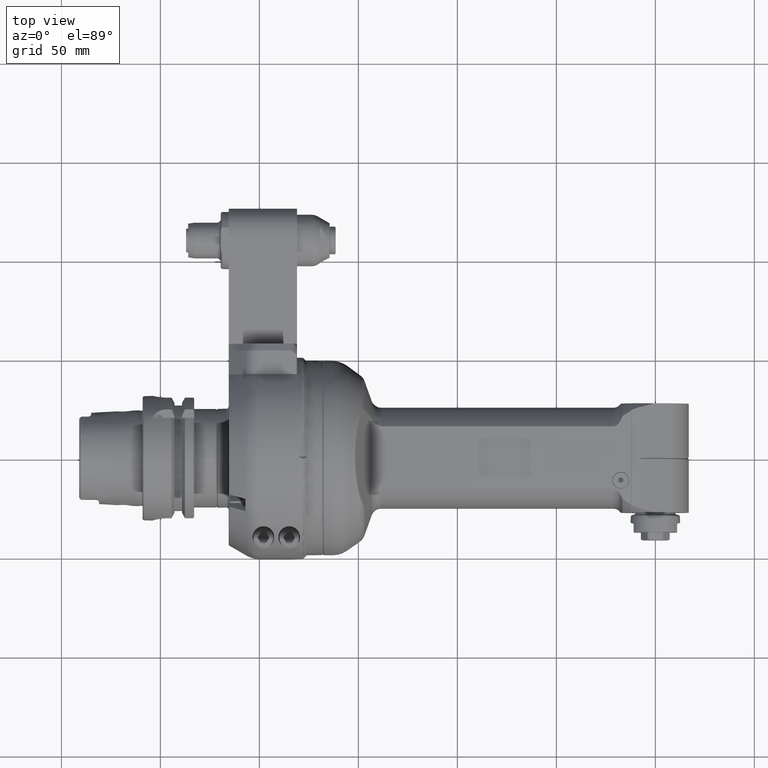
[diagram: clean part render]
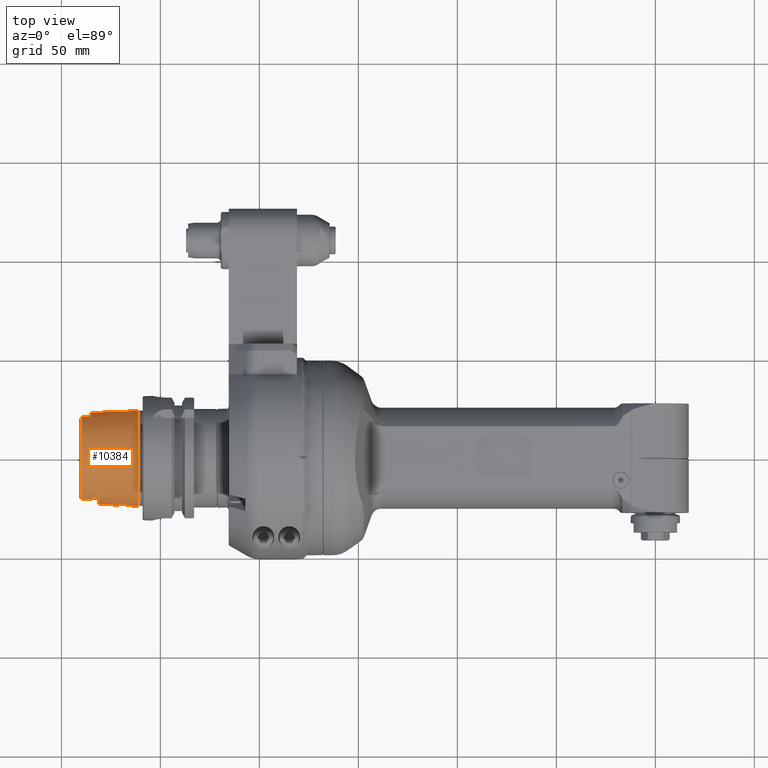
[diagram: same view with one face highlighted and labeled with its STEP entity id]
A machine part, top view. The second image highlights one B-rep face of the part: STEP entity #10384.
In plain terms, the highlighted conical surface has half-angle 2.868 deg.
Its self-contained STEP definition (entity closure, byte-faithful):
#142=B_SPLINE_CURVE_WITH_KNOTS('',3,(#16040,#16041,#16042,#16043,#16044,
#16045,#16046,#16047,#16048,#16049,#16050,#16051,#16052,#16053,#16054,#16055,
#16056,#16057,#16058,#16059,#16060,#16061,#16062,#16063,#16064,#16065,#16066,
#16067,#16068,#16069,#16070,#16071,#16072,#16073),.UNSPECIFIED.,.T.,.F.,
(4,2,2,2,2,2,2,2,2,2,2,2,2,2,2,2,4),(-2.26557963365273,-2.12289890541703,
-1.98021817718132,-1.83774161437097,-1.69526505156063,-1.55278848875028,
-1.41031192593993,-1.26763119770423,-1.12495046946852,-0.984429307223055,
-0.843908144977592,-0.703191689855926,-0.562475234734259,-0.421758779612592,
-0.281042324490925,-0.140521162245463,0.),.UNSPECIFIED.);
#143=B_SPLINE_CURVE_WITH_KNOTS('',3,(#16084,#16085,#16086,#16087,#16088,
#16089,#16090,#16091),.UNSPECIFIED.,.F.,.F.,(4,2,2,4),(1.87852147331266,
1.963329695841,2.14651650480581,2.20196367131646),.UNSPECIFIED.);
#144=B_SPLINE_CURVE_WITH_KNOTS('',3,(#16093,#16094,#16095,#16096,#16097,
#16098,#16099,#16100,#16101,#16102,#16103,#16104,#16105,#16106),
 .UNSPECIFIED.,.F.,.F.,(4,2,2,2,2,2,4),(0.648088302025581,0.675048238727927,
0.706405860283038,0.747031442264556,0.813706573861447,0.931756672654788,
0.968140813857767),.UNSPECIFIED.);
#145=B_SPLINE_CURVE_WITH_KNOTS('',3,(#16110,#16111,#16112,#16113,#16114,
#16115,#16116,#16117,#16118,#16119,#16120,#16121,#16122,#16123),
 .UNSPECIFIED.,.F.,.F.,(4,2,2,2,2,2,4),(0.250897982804697,0.322899286414574,
0.451677279434134,0.504038531730168,0.537850831870268,0.567600566645651,
0.582022119285949),.UNSPECIFIED.);
#146=B_SPLINE_CURVE_WITH_KNOTS('',3,(#16125,#16126,#16127,#16128,#16129,
#16130,#16131,#16132),.UNSPECIFIED.,.F.,.F.,(4,2,2,4),(1.0436736915198,
1.09912085673295,1.28230766618844,1.36711588957229),.UNSPECIFIED.);
#147=B_SPLINE_CURVE_WITH_KNOTS('',3,(#16136,#16137,#16138,#16139,#16140,
#16141,#16142,#16143,#16144,#16145,#16146,#16147,#16148,#16149,#16150,#16151,
#16152,#16153,#16154,#16155,#16156,#16157,#16158,#16159,#16160,#16161,#16162,
#16163,#16164,#16165,#16166,#16167,#16168,#16169,#16170,#16171,#16172,#16173,
#16174,#16175,#16176,#16177,#16178,#16179,#16180,#16181,#16182,#16183,#16184,
#16185,#16186,#16187,#16188,#16189,#16190,#16191,#16192,#16193,#16194,#16195,
#16196,#16197,#16198,#16199,#16200,#16201,#16202,#16203,#16204,#16205,#16206,
#16207,#16208,#16209,#16210,#16211,#16212,#16213,#16214,#16215,#16216,#16217,
#16218,#16219,#16220,#16221,#16222,#16223,#16224,#16225,#16226,#16227,#16228,
#16229),.UNSPECIFIED.,.F.,.F.,(4,3,3,3,3,3,3,3,3,3,3,3,3,3,3,3,3,3,3,3,
3,3,3,3,3,3,3,3,3,3,3,4),(0.,0.03225806451613,0.06451612903226,0.09677419354839,
0.1290322580645,0.1612903225806,0.1935483870968,0.2258064516129,0.258064516129,
0.2903225806452,0.3225806451613,0.3548387096774,0.3870967741935,0.4193548387097,
0.4516129032258,0.4838709677419,0.5161290322581,0.5483870967742,0.5806451612903,
0.6129032258065,0.6451612903226,0.6774193548387,0.7096774193548,0.741935483871,
0.7741935483871,0.8064516129032,0.8387096774194,0.8709677419355,0.9032258064516,
0.9354838709677,0.9677419354839,1.),.UNSPECIFIED.);
#148=B_SPLINE_CURVE_WITH_KNOTS('',3,(#16231,#16232,#16233,#16234,#16235,
#16236,#16237,#16238,#16239,#16240,#16241,#16242,#16243,#16244,#16245),
 .UNSPECIFIED.,.F.,.F.,(4,1,1,1,1,1,1,1,1,1,1,1,4),(0.,0.08333333333333,
0.1666666666667,0.25,0.3333333333333,0.4166666666667,0.5,0.5833333333333,
0.6666666666667,0.75,0.8333333333333,0.9166666666667,1.),.UNSPECIFIED.);
#149=B_SPLINE_CURVE_WITH_KNOTS('',3,(#16247,#16248,#16249,#16250,#16251,
#16252,#16253,#16254,#16255,#16256,#16257,#16258,#16259,#16260,#16261,#16262,
#16263,#16264,#16265,#16266,#16267,#16268,#16269,#16270,#16271,#16272,#16273,
#16274,#16275,#16276,#16277,#16278,#16279,#16280,#16281,#16282,#16283,#16284,
#16285,#16286,#16287,#16288,#16289,#16290,#16291,#16292,#16293,#16294,#16295,
#16296,#16297,#16298,#16299,#16300,#16301,#16302,#16303,#16304,#16305,#16306,
#16307,#16308,#16309,#16310,#16311,#16312,#16313,#16314,#16315,#16316,#16317,
#16318,#16319,#16320,#16321,#16322),.UNSPECIFIED.,.F.,.F.,(4,3,3,3,3,3,
3,3,3,3,3,3,3,3,3,3,3,3,3,3,3,3,3,3,3,4),(0.,0.04,0.08,0.12,0.16,0.2,0.24,
0.28,0.32,0.36,0.4,0.44,0.48,0.52,0.56,0.6,0.64,0.68,0.72,0.76,0.8,0.84,
0.88,0.92,0.96,1.),.UNSPECIFIED.);
#150=B_SPLINE_CURVE_WITH_KNOTS('',3,(#16324,#16325,#16326,#16327,#16328,
#16329,#16330,#16331,#16332,#16333,#16334,#16335),.UNSPECIFIED.,.F.,.F.,
(4,2,2,2,2,4),(-1.35810253269912,-1.33001864992515,-1.27929112224147,-1.22120743995857,
-1.19655389712235,-1.18646391717197),.UNSPECIFIED.);
#151=B_SPLINE_CURVE_WITH_KNOTS('',3,(#16339,#16340,#16341,#16342,#16343,
#16344,#16345,#16346,#16347,#16348),.UNSPECIFIED.,.F.,.F.,(4,2,2,2,4),(-0.500911046834186,
-0.481998817137455,-0.442781745819813,-0.333902719665274,-0.278648797669557),
 .UNSPECIFIED.);
#152=B_SPLINE_CURVE_WITH_KNOTS('',3,(#16350,#16351,#16352,#16353,#16354,
#16355,#16356,#16357,#16358,#16359,#16360,#16361,#16362,#16363,#16364,#16365,
#16366,#16367,#16368,#16369,#16370,#16371,#16372,#16373,#16374,#16375,#16376,
#16377,#16378,#16379,#16380,#16381,#16382,#16383,#16384,#16385,#16386,#16387,
#16388,#16389,#16390,#16391,#16392,#16393,#16394,#16395,#16396,#16397,#16398,
#16399,#16400,#16401,#16402,#16403,#16404,#16405,#16406,#16407,#16408,#16409,
#16410,#16411,#16412,#16413,#16414,#16415,#16416,#16417,#16418,#16419,#16420,
#16421,#16422,#16423,#16424,#16425),.UNSPECIFIED.,.F.,.F.,(4,3,3,3,3,3,
3,3,3,3,3,3,3,3,3,3,3,3,3,3,3,3,3,3,3,4),(0.,0.04,0.08,0.12,0.16,0.2,0.24,
0.28,0.32,0.36,0.4,0.44,0.48,0.52,0.56,0.6,0.64,0.68,0.72,0.76,0.8,0.84,
0.88,0.92,0.96,1.),.UNSPECIFIED.);
#153=B_SPLINE_CURVE_WITH_KNOTS('',3,(#16427,#16428,#16429,#16430,#16431,
#16432,#16433,#16434,#16435,#16436,#16437,#16438,#16439,#16440,#16441),
 .UNSPECIFIED.,.F.,.F.,(4,1,1,1,1,1,1,1,1,1,1,1,4),(0.,0.08333333333333,
0.1666666666667,0.25,0.3333333333333,0.4166666666667,0.5,0.5833333333333,
0.6666666666667,0.75,0.8333333333333,0.9166666666667,1.),.UNSPECIFIED.);
#154=B_SPLINE_CURVE_WITH_KNOTS('',3,(#16443,#16444,#16445,#16446,#16447,
#16448,#16449,#16450,#16451,#16452,#16453,#16454,#16455,#16456,#16457,#16458,
#16459,#16460,#16461,#16462,#16463,#16464,#16465,#16466,#16467,#16468,#16469,
#16470,#16471,#16472,#16473,#16474,#16475,#16476,#16477,#16478,#16479,#16480,
#16481,#16482,#16483,#16484,#16485,#16486,#16487,#16488,#16489,#16490,#16491,
#16492,#16493,#16494,#16495,#16496,#16497,#16498,#16499,#16500,#16501,#16502,
#16503,#16504,#16505,#16506,#16507,#16508,#16509,#16510,#16511,#16512,#16513,
#16514,#16515,#16516,#16517,#16518,#16519,#16520,#16521,#16522,#16523,#16524,
#16525,#16526,#16527,#16528,#16529,#16530,#16531,#16532,#16533,#16534,#16535,
#16536),.UNSPECIFIED.,.F.,.F.,(4,3,3,3,3,3,3,3,3,3,3,3,3,3,3,3,3,3,3,3,
3,3,3,3,3,3,3,3,3,3,3,4),(0.,0.03225806451613,0.06451612903226,0.09677419354839,
0.1290322580645,0.1612903225806,0.1935483870968,0.2258064516129,0.258064516129,
0.2903225806452,0.3225806451613,0.3548387096774,0.3870967741935,0.4193548387097,
0.4516129032258,0.4838709677419,0.5161290322581,0.5483870967742,0.5806451612903,
0.6129032258065,0.6451612903226,0.6774193548387,0.7096774193548,0.741935483871,
0.7741935483871,0.8064516129032,0.8387096774194,0.8709677419355,0.9032258064516,
0.9354838709677,0.9677419354839,1.),.UNSPECIFIED.);
#155=B_SPLINE_CURVE_WITH_KNOTS('',3,(#16541,#16542,#16543,#16544,#16545,
#16546,#16547,#16548,#16549,#16550,#16551,#16552,#16553,#16554,#16555,#16556,
#16557,#16558),.UNSPECIFIED.,.F.,.F.,(4,2,2,2,2,2,2,2,4),(0.562475234734259,
0.703191689855926,0.843908144977593,0.984429307223056,1.12495046946852,
1.26763119770423,1.41031192593993,1.55278848875028,1.69526505156063),
 .UNSPECIFIED.);
#156=B_SPLINE_CURVE_WITH_KNOTS('',3,(#16559,#16560,#16561,#16562,#16563,
#16564,#16565,#16566,#16567,#16568,#16569,#16570,#16571,#16572,#16573,#16574,
#16575,#16576,#16577),.UNSPECIFIED.,.F.,.F.,(4,2,2,2,3,2,2,2,4),(1.69526505156063,
1.83774161437097,1.98021817718132,2.12289890541703,2.26557963365273,2.4061007958982,
2.54662195814366,2.68733841326533,2.82805486838699),.UNSPECIFIED.);
#319=CONICAL_SURFACE('',#11097,23.49739340079,0.0500570901447486);
#481=LINE('',#16080,#1177);
#1177=VECTOR('',#12543,23.49739340079);
#2069=FACE_BOUND('',#2839,.T.);
#2070=FACE_BOUND('',#2840,.T.);
#2188=FACE_OUTER_BOUND('',#2838,.T.);
#2838=EDGE_LOOP('',(#7019,#7020,#7021,#7022,#7023,#7024,#7025,#7026,#7027,
#7028,#7029,#7030,#7031,#7032,#7033,#7034,#7035,#7036,#7037,#7038,#7039));
#2839=EDGE_LOOP('',(#7040,#7041));
#2840=EDGE_LOOP('',(#7042));
#3562=CIRCLE('',#11098,24.22021898401);
#3563=CIRCLE('',#11099,22.77456781756);
#3564=CIRCLE('',#11100,23.01805084955);
#3565=CIRCLE('',#11101,22.77456781756);
#3566=CIRCLE('',#11102,23.21844661614);
#3567=CIRCLE('',#11103,22.77456781756);
#3568=CIRCLE('',#11104,24.22021898401);
#4217=VERTEX_POINT('',#16039);
#4218=VERTEX_POINT('',#16076);
#4219=VERTEX_POINT('',#16077);
#4220=VERTEX_POINT('',#16079);
#4221=VERTEX_POINT('',#16081);
#4222=VERTEX_POINT('',#16083);
#4223=VERTEX_POINT('',#16092);
#4224=VERTEX_POINT('',#16107);
#4225=VERTEX_POINT('',#16109);
#4226=VERTEX_POINT('',#16124);
#4227=VERTEX_POINT('',#16133);
#4228=VERTEX_POINT('',#16135);
#4229=VERTEX_POINT('',#16230);
#4230=VERTEX_POINT('',#16246);
#4231=VERTEX_POINT('',#16323);
#4232=VERTEX_POINT('',#16336);
#4233=VERTEX_POINT('',#16338);
#4234=VERTEX_POINT('',#16349);
#4235=VERTEX_POINT('',#16426);
#4236=VERTEX_POINT('',#16442);
#4237=VERTEX_POINT('',#16539);
#4238=VERTEX_POINT('',#16540);
#5301=EDGE_CURVE('',#4217,#4217,#142,.T.);
#5303=EDGE_CURVE('',#4218,#4219,#3562,.T.);
#5304=EDGE_CURVE('',#4219,#4220,#481,.T.);
#5305=EDGE_CURVE('',#4220,#4221,#3563,.T.);
#5306=EDGE_CURVE('',#4222,#4221,#143,.T.);
#5307=EDGE_CURVE('',#4222,#4223,#144,.T.);
#5308=EDGE_CURVE('',#4224,#4223,#3564,.T.);
#5309=EDGE_CURVE('',#4224,#4225,#145,.T.);
#5310=EDGE_CURVE('',#4226,#4225,#146,.T.);
#5311=EDGE_CURVE('',#4227,#4226,#3565,.T.);
#5312=EDGE_CURVE('',#4228,#4227,#147,.T.);
#5313=EDGE_CURVE('',#4229,#4228,#148,.T.);
#5314=EDGE_CURVE('',#4230,#4229,#149,.T.);
#5315=EDGE_CURVE('',#4231,#4230,#150,.T.);
#5316=EDGE_CURVE('',#4232,#4231,#3566,.T.);
#5317=EDGE_CURVE('',#4233,#4232,#151,.T.);
#5318=EDGE_CURVE('',#4234,#4233,#152,.T.);
#5319=EDGE_CURVE('',#4235,#4234,#153,.T.);
#5320=EDGE_CURVE('',#4236,#4235,#154,.T.);
#5321=EDGE_CURVE('',#4236,#4220,#3567,.T.);
#5322=EDGE_CURVE('',#4219,#4218,#3568,.T.);
#5323=EDGE_CURVE('',#4237,#4238,#155,.T.);
#5324=EDGE_CURVE('',#4238,#4237,#156,.T.);
#7019=ORIENTED_EDGE('',*,*,#5303,.T.);
#7020=ORIENTED_EDGE('',*,*,#5304,.T.);
#7021=ORIENTED_EDGE('',*,*,#5305,.T.);
#7022=ORIENTED_EDGE('',*,*,#5306,.F.);
#7023=ORIENTED_EDGE('',*,*,#5307,.T.);
#7024=ORIENTED_EDGE('',*,*,#5308,.F.);
#7025=ORIENTED_EDGE('',*,*,#5309,.T.);
#7026=ORIENTED_EDGE('',*,*,#5310,.F.);
#7027=ORIENTED_EDGE('',*,*,#5311,.F.);
#7028=ORIENTED_EDGE('',*,*,#5312,.F.);
#7029=ORIENTED_EDGE('',*,*,#5313,.F.);
#7030=ORIENTED_EDGE('',*,*,#5314,.F.);
#7031=ORIENTED_EDGE('',*,*,#5315,.F.);
#7032=ORIENTED_EDGE('',*,*,#5316,.F.);
#7033=ORIENTED_EDGE('',*,*,#5317,.F.);
#7034=ORIENTED_EDGE('',*,*,#5318,.F.);
#7035=ORIENTED_EDGE('',*,*,#5319,.F.);
#7036=ORIENTED_EDGE('',*,*,#5320,.F.);
#7037=ORIENTED_EDGE('',*,*,#5321,.T.);
#7038=ORIENTED_EDGE('',*,*,#5304,.F.);
#7039=ORIENTED_EDGE('',*,*,#5322,.T.);
#7040=ORIENTED_EDGE('',*,*,#5323,.F.);
#7041=ORIENTED_EDGE('',*,*,#5324,.F.);
#7042=ORIENTED_EDGE('',*,*,#5301,.F.);
#10384=ADVANCED_FACE('',(#2188,#2069,#2070),#319,.T.);
#11097=AXIS2_PLACEMENT_3D('',#16075,#12539,#12540);
#11098=AXIS2_PLACEMENT_3D('',#16078,#12541,#12542);
#11099=AXIS2_PLACEMENT_3D('',#16082,#12544,#12545);
#11100=AXIS2_PLACEMENT_3D('',#16108,#12546,#12547);
#11101=AXIS2_PLACEMENT_3D('',#16134,#12548,#12549);
#11102=AXIS2_PLACEMENT_3D('',#16337,#12550,#12551);
#11103=AXIS2_PLACEMENT_3D('',#16537,#12552,#12553);
#11104=AXIS2_PLACEMENT_3D('',#16538,#12554,#12555);
#12539=DIRECTION('center_axis',(1.,0.,0.));
#12540=DIRECTION('ref_axis',(0.,0.707106781186548,0.707106781186548));
#12541=DIRECTION('center_axis',(-1.,0.,0.));
#12542=DIRECTION('ref_axis',(0.,0.707106781186547,0.707106781186547));
#12543=DIRECTION('',(-0.998747405449354,0.0353809278297194,0.0353809278297194));
#12544=DIRECTION('center_axis',(1.,0.,0.));
#12545=DIRECTION('ref_axis',(0.,-0.707106781186547,-0.707106781186547));
#12546=DIRECTION('center_axis',(-1.,0.,0.));
#12547=DIRECTION('ref_axis',(0.,0.950655672568357,0.310247952795186));
#12548=DIRECTION('center_axis',(-1.,0.,0.));
#12549=DIRECTION('ref_axis',(0.,-0.916365066617768,0.400343683205586));
#12550=DIRECTION('center_axis',(-1.,0.,0.));
#12551=DIRECTION('ref_axis',(0.,-0.94780590928591,-0.318847860778003));
#12552=DIRECTION('center_axis',(1.,0.,0.));
#12553=DIRECTION('ref_axis',(0.,-0.707106781186547,-0.707106781186547));
#12554=DIRECTION('center_axis',(-1.,0.,0.));
#12555=DIRECTION('ref_axis',(0.,0.707106781186547,0.707106781186547));
#16039=CARTESIAN_POINT('',(-264.25,24.05760388874,0.));
#16040=CARTESIAN_POINT('Ctrl Pts',(-268.029515050341,23.5718461085892,3.74988384644156));
#16041=CARTESIAN_POINT('Ctrl Pts',(-267.554508359898,23.5953479137215,3.75362258794793));
#16042=CARTESIAN_POINT('Ctrl Pts',(-267.048611320345,23.636207974791,3.66191293850586));
#16043=CARTESIAN_POINT('Ctrl Pts',(-266.118536625042,23.738916568537,3.28250562870908));
#16044=CARTESIAN_POINT('Ctrl Pts',(-265.694240586168,23.7999226154427,2.99487058324756));
#16045=CARTESIAN_POINT('Ctrl Pts',(-265.023850058135,23.9079449341569,2.32973588252696));
#16046=CARTESIAN_POINT('Ctrl Pts',(-264.732684231097,23.9620973119612,1.90776874445896));
#16047=CARTESIAN_POINT('Ctrl Pts',(-264.345723903129,24.0373189681924,0.980408196735909));
#16048=CARTESIAN_POINT('Ctrl Pts',(-264.25,24.0576038887331,0.474921876034486));
#16049=CARTESIAN_POINT('Ctrl Pts',(-264.25,24.0576038887331,-0.474921876034487));
#16050=CARTESIAN_POINT('Ctrl Pts',(-264.345723903129,24.0373189681924,-0.980408196735908));
#16051=CARTESIAN_POINT('Ctrl Pts',(-264.732684231097,23.9620973119612,-1.90776874445897));
#16052=CARTESIAN_POINT('Ctrl Pts',(-265.023850058135,23.9079449341569,-2.32973588252696));
#16053=CARTESIAN_POINT('Ctrl Pts',(-265.694240586168,23.7999226154427,-2.99487058324756));
#16054=CARTESIAN_POINT('Ctrl Pts',(-266.118536625042,23.738916568537,-3.28250562870908));
#16055=CARTESIAN_POINT('Ctrl Pts',(-267.048611320345,23.6362079747911,-3.66191293850586));
#16056=CARTESIAN_POINT('Ctrl Pts',(-267.554508359898,23.5953479137215,-3.75362258794793));
#16057=CARTESIAN_POINT('Ctrl Pts',(-268.497332204352,23.5487000186239,-3.74620169322924));
#16058=CARTESIAN_POINT('Ctrl Pts',(-268.996135681023,23.5393999048604,-3.64932097112701));
#16059=CARTESIAN_POINT('Ctrl Pts',(-269.912913078397,23.5496143871783,-3.2635247030736));
#16060=CARTESIAN_POINT('Ctrl Pts',(-270.330901490009,23.5683046058624,-2.97462220634907));
#16061=CARTESIAN_POINT('Ctrl Pts',(-270.990886356118,23.6094750319828,-2.31012703498402));
#16062=CARTESIAN_POINT('Ctrl Pts',(-271.277053954328,23.6345973217103,-1.88978114724753));
#16063=CARTESIAN_POINT('Ctrl Pts',(-271.656621530359,23.6711804503687,-0.969264895238196));
#16064=CARTESIAN_POINT('Ctrl Pts',(-271.75,23.6818618263774,-0.469054850405556));
#16065=CARTESIAN_POINT('Ctrl Pts',(-271.75,23.6818618263774,0.469054850405556));
#16066=CARTESIAN_POINT('Ctrl Pts',(-271.656621530359,23.6711804503687,0.969264895238194));
#16067=CARTESIAN_POINT('Ctrl Pts',(-271.277053954328,23.6345973217103,1.88978114724752));
#16068=CARTESIAN_POINT('Ctrl Pts',(-270.990886356118,23.6094750319828,2.31012703498402));
#16069=CARTESIAN_POINT('Ctrl Pts',(-270.330901490009,23.5683046058624,2.97462220634907));
#16070=CARTESIAN_POINT('Ctrl Pts',(-269.912913078397,23.5496143871783,3.2635247030736));
#16071=CARTESIAN_POINT('Ctrl Pts',(-268.996135681023,23.5393999048604,3.64932097112701));
#16072=CARTESIAN_POINT('Ctrl Pts',(-268.497332204352,23.5487000186239,3.74620169322923));
#16073=CARTESIAN_POINT('Ctrl Pts',(-268.029515050341,23.5718461085892,3.74988384644156));
#16075=CARTESIAN_POINT('Origin',(-275.432082286,0.,0.));
#16076=CARTESIAN_POINT('',(-261.0041211464,17.12628108542,17.12628108542));
#16077=CARTESIAN_POINT('',(-261.0041211464,-17.1262810854196,-17.1262810854196));
#16078=CARTESIAN_POINT('Origin',(-261.0041211464,0.,0.));
#16079=CARTESIAN_POINT('',(-289.860043425601,-16.1040513423936,-16.1040513423936));
#16080=CARTESIAN_POINT('',(-275.432082286,-16.6151662139066,-16.6151662139066));
#16081=CARTESIAN_POINT('',(-289.8600434256,20.86981835535,-9.117654363463));
#16082=CARTESIAN_POINT('Origin',(-289.8600434256,0.,0.));
#16083=CARTESIAN_POINT('',(-286.5,20.83290092553,-9.610775788879));
#16084=CARTESIAN_POINT('Ctrl Pts',(-286.500000000003,20.8329009255283,-9.61077578889364));
#16085=CARTESIAN_POINT('Ctrl Pts',(-286.783490445254,20.8413724811499,-9.55850786619048));
#16086=CARTESIAN_POINT('Ctrl Pts',(-287.070248237026,20.8478073413606,-9.50986699412194));
#16087=CARTESIAN_POINT('Ctrl Pts',(-287.98515662068,20.8638217751975,-9.36366645839556));
#16088=CARTESIAN_POINT('Ctrl Pts',(-288.623343148739,20.8685085881573,-9.27459531054554));
#16089=CARTESIAN_POINT('Ctrl Pts',(-289.466127109578,20.8700624475257,-9.16631082128941));
#16090=CARTESIAN_POINT('Ctrl Pts',(-289.662743490914,20.8700887193884,-9.14172559565565));
#16091=CARTESIAN_POINT('Ctrl Pts',(-289.860043425601,20.8698183553477,-9.11765436346939));
#16092=CARTESIAN_POINT('',(-285.,21.88224061159,-7.141303153407));
#16093=CARTESIAN_POINT('Ctrl Pts',(-286.500000000003,20.8329009255283,-9.61077578889365));
#16094=CARTESIAN_POINT('Ctrl Pts',(-286.451412803024,20.8314489924963,-9.61973394568013));
#16095=CARTESIAN_POINT('Ctrl Pts',(-286.403310110275,20.8336401790428,-9.62073721834903));
#16096=CARTESIAN_POINT('Ctrl Pts',(-286.298560865748,20.8464278881811,-9.60554521151354));
#16097=CARTESIAN_POINT('Ctrl Pts',(-286.245706969117,20.857857863676,-9.58707640183016));
#16098=CARTESIAN_POINT('Ctrl Pts',(-286.132799684,20.8893183107913,-9.53199317456527));
#16099=CARTESIAN_POINT('Ctrl Pts',(-286.060268786836,20.9150585072382,-9.48448009124599));
#16100=CARTESIAN_POINT('Ctrl Pts',(-285.838647872013,21.0151373924229,-9.28874691392679));
#16101=CARTESIAN_POINT('Ctrl Pts',(-285.698710144838,21.0971469157366,-9.11993002449218));
#16102=CARTESIAN_POINT('Ctrl Pts',(-285.352193060082,21.3346001590629,-8.60152235862112));
#16103=CARTESIAN_POINT('Ctrl Pts',(-285.129495595537,21.5309104117354,-8.14028608722755));
#16104=CARTESIAN_POINT('Ctrl Pts',(-285.013086935923,21.7782824444398,-7.45228581516847));
#16105=CARTESIAN_POINT('Ctrl Pts',(-285.,21.832357222478,-7.29415485282962));
#16106=CARTESIAN_POINT('Ctrl Pts',(-285.,21.8822406115908,-7.14130315340726));
#16107=CARTESIAN_POINT('',(-285.,21.88224061159,7.141303153408));
#16108=CARTESIAN_POINT('Origin',(-285.,0.,0.));
#16109=CARTESIAN_POINT('',(-286.5,20.83290092553,9.610775788879));
#16110=CARTESIAN_POINT('Ctrl Pts',(-285.,21.8822406115905,7.14130315340816));
#16111=CARTESIAN_POINT('Ctrl Pts',(-285.,21.7933640580366,7.41363694008774));
#16112=CARTESIAN_POINT('Ctrl Pts',(-285.041612162461,21.6957996581464,7.68824455746781));
#16113=CARTESIAN_POINT('Ctrl Pts',(-285.255793077106,21.4094445931154,8.43441100564934));
#16114=CARTESIAN_POINT('Ctrl Pts',(-285.495523502606,21.2243799959662,8.84932399272436));
#16115=CARTESIAN_POINT('Ctrl Pts',(-285.806237291123,21.0365866986538,9.24395926600642));
#16116=CARTESIAN_POINT('Ctrl Pts',(-285.91663058402,20.9761032068549,9.36659326279812));
#16117=CARTESIAN_POINT('Ctrl Pts',(-286.114619990401,20.8950552401882,9.52178759584367));
#16118=CARTESIAN_POINT('Ctrl Pts',(-286.182079648038,20.8739760220789,9.55958934573744));
#16119=CARTESIAN_POINT('Ctrl Pts',(-286.295275231779,20.8472940080879,9.60408350993965));
#16120=CARTESIAN_POINT('Ctrl Pts',(-286.351677199847,20.8380106848694,9.61743794135668));
#16121=CARTESIAN_POINT('Ctrl Pts',(-286.441732781475,20.8324598638866,9.6186976512953));
#16122=CARTESIAN_POINT('Ctrl Pts',(-286.47092769203,20.8320321566573,9.61613593125967));
#16123=CARTESIAN_POINT('Ctrl Pts',(-286.500000000003,20.8329009255283,9.61077578889364));
#16124=CARTESIAN_POINT('',(-289.8600434256,20.86981835535,9.117654363463));
#16125=CARTESIAN_POINT('Ctrl Pts',(-289.860043425601,20.8698183553477,9.1176543634694));
#16126=CARTESIAN_POINT('Ctrl Pts',(-289.662743495561,20.8700887193821,9.14172559508877));
#16127=CARTESIAN_POINT('Ctrl Pts',(-289.46612711884,20.8700624475269,9.16631082013145));
#16128=CARTESIAN_POINT('Ctrl Pts',(-288.623343160822,20.8685085882326,9.27459530888649));
#16129=CARTESIAN_POINT('Ctrl Pts',(-287.985156631029,20.8638217753162,9.363666456866));
#16130=CARTESIAN_POINT('Ctrl Pts',(-287.070248242738,20.8478073414895,9.50986699315166));
#16131=CARTESIAN_POINT('Ctrl Pts',(-286.78349044808,20.8413724812343,9.55850786566943));
#16132=CARTESIAN_POINT('Ctrl Pts',(-286.500000000003,20.8329009255283,9.61077578889364));
#16133=CARTESIAN_POINT('',(-289.8600434253,-20.86981835534,9.117654363522));
#16134=CARTESIAN_POINT('Origin',(-289.8600434256,0.,0.));
#16135=CARTESIAN_POINT('',(-284.0982871601,-20.55704259638,10.45563865919));
#16136=CARTESIAN_POINT('Ctrl Pts',(-284.0982871601,-20.5570425963799,10.4556386591899));
#16137=CARTESIAN_POINT('Ctrl Pts',(-284.0982871609,-20.5614280436713,10.4470163425007));
#16138=CARTESIAN_POINT('Ctrl Pts',(-284.09912079545,-20.5659589986028,10.4380015787259));
#16139=CARTESIAN_POINT('Ctrl Pts',(-284.101086986592,-20.5706743442855,
10.4284834487573));
#16140=CARTESIAN_POINT('Ctrl Pts',(-284.103053177733,-20.5753896899683,
10.4189653187888));
#16141=CARTESIAN_POINT('Ctrl Pts',(-284.106151925467,-20.580287850313,10.4089430390031));
#16142=CARTESIAN_POINT('Ctrl Pts',(-284.110518070933,-20.5852071164477,
10.398719353073));
#16143=CARTESIAN_POINT('Ctrl Pts',(-284.1148842164,-20.5901263825825,10.388495667143));
#16144=CARTESIAN_POINT('Ctrl Pts',(-284.1205177596,-20.5950673696367,10.3780708608145));
#16145=CARTESIAN_POINT('Ctrl Pts',(-284.127391041383,-20.5999620130359,
10.3675788641848));
#16146=CARTESIAN_POINT('Ctrl Pts',(-284.134264323167,-20.6048566564352,
10.3570868675551));
#16147=CARTESIAN_POINT('Ctrl Pts',(-284.142377343533,-20.6097058290191,
10.3465280965013));
#16148=CARTESIAN_POINT('Ctrl Pts',(-284.151856949917,-20.6145447454799,
10.3358182318442));
#16149=CARTESIAN_POINT('Ctrl Pts',(-284.1613365563,-20.6193836619407,10.3251083671871));
#16150=CARTESIAN_POINT('Ctrl Pts',(-284.1721827487,-20.6242113729589,10.314246978632));
#16151=CARTESIAN_POINT('Ctrl Pts',(-284.184282487217,-20.6289598010326,
10.3033824901281));
#16152=CARTESIAN_POINT('Ctrl Pts',(-284.196382225733,-20.6337082291063,
10.2925180016241));
#16153=CARTESIAN_POINT('Ctrl Pts',(-284.209735510367,-20.6383782352025,
10.2816507863091));
#16154=CARTESIAN_POINT('Ctrl Pts',(-284.224408602917,-20.6429953823523,
10.2707209738455));
#16155=CARTESIAN_POINT('Ctrl Pts',(-284.239081695467,-20.6476125295021,
10.259791161382));
#16156=CARTESIAN_POINT('Ctrl Pts',(-284.255074595933,-20.6521765252908,
10.2487986323994));
#16157=CARTESIAN_POINT('Ctrl Pts',(-284.272398532417,-20.6566817842844,
10.2377537687205));
#16158=CARTESIAN_POINT('Ctrl Pts',(-284.2897224689,-20.6611870432781,10.2267089050415));
#16159=CARTESIAN_POINT('Ctrl Pts',(-284.3083774414,-20.6656336722765,10.2156117477805));
#16160=CARTESIAN_POINT('Ctrl Pts',(-284.328407730917,-20.6700263661961,
10.2044470951611));
#16161=CARTESIAN_POINT('Ctrl Pts',(-284.348438020433,-20.6744190601157,
10.1932824425417));
#16162=CARTESIAN_POINT('Ctrl Pts',(-284.369843626967,-20.6787578445007,
10.1820503056625));
#16163=CARTESIAN_POINT('Ctrl Pts',(-284.3927010431,-20.6830488106421,10.1707292018451));
#16164=CARTESIAN_POINT('Ctrl Pts',(-284.415558459233,-20.6873397767834,
10.1594080980277));
#16165=CARTESIAN_POINT('Ctrl Pts',(-284.439867684967,-20.6915829181701,
10.147998024687));
#16166=CARTESIAN_POINT('Ctrl Pts',(-284.465720413233,-20.6957824926531,
10.1364791444588));
#16167=CARTESIAN_POINT('Ctrl Pts',(-284.4915731415,-20.699982067136,10.1249602642306));
#16168=CARTESIAN_POINT('Ctrl Pts',(-284.5189693723,-20.7041380626061,10.1133325726665));
#16169=CARTESIAN_POINT('Ctrl Pts',(-284.548010869067,-20.7082525355892,
10.1015792939964));
#16170=CARTESIAN_POINT('Ctrl Pts',(-284.577052365833,-20.7123670085724,
10.0898260153263));
#16171=CARTESIAN_POINT('Ctrl Pts',(-284.607739128567,-20.7164399705595,
10.0779471535639));
#16172=CARTESIAN_POINT('Ctrl Pts',(-284.640195719983,-20.7204732115306,
10.0659236000419));
#16173=CARTESIAN_POINT('Ctrl Pts',(-284.6726523114,-20.7245064525017,10.0539000465199));
#16174=CARTESIAN_POINT('Ctrl Pts',(-284.7068787315,-20.7284999616406,10.041731797663));
#16175=CARTESIAN_POINT('Ctrl Pts',(-284.743009287334,-20.7324534696909,
10.0294026191572));
#16176=CARTESIAN_POINT('Ctrl Pts',(-284.779139843167,-20.7364069777411,
10.0170734406515));
#16177=CARTESIAN_POINT('Ctrl Pts',(-284.817174534733,-20.7403204863144,
10.0045833329551));
#16178=CARTESIAN_POINT('Ctrl Pts',(-284.85726358945,-20.7441926486457,9.99191618000005));
#16179=CARTESIAN_POINT('Ctrl Pts',(-284.897352644167,-20.7480648109771,
9.979249027045));
#16180=CARTESIAN_POINT('Ctrl Pts',(-284.939496062033,-20.7518956270773,
9.96640482885626));
#16181=CARTESIAN_POINT('Ctrl Pts',(-284.983859289983,-20.755682529029,9.95336800323625));
#16182=CARTESIAN_POINT('Ctrl Pts',(-285.028222517933,-20.7594694309807,
9.9403311776162));
#16183=CARTESIAN_POINT('Ctrl Pts',(-285.074805555967,-20.7632124193104,
9.92710172470669));
#16184=CARTESIAN_POINT('Ctrl Pts',(-285.123789272567,-20.7669077172887,
9.91366454000593));
#16185=CARTESIAN_POINT('Ctrl Pts',(-285.172772989167,-20.7706030152669,
9.90022735530521));
#16186=CARTESIAN_POINT('Ctrl Pts',(-285.224157384333,-20.7742506247106,
9.88658243930761));
#16187=CARTESIAN_POINT('Ctrl Pts',(-285.278139898033,-20.7778456018668,
9.87271495082904));
#16188=CARTESIAN_POINT('Ctrl Pts',(-285.332122411733,-20.7814405790231,
9.85884746235047));
#16189=CARTESIAN_POINT('Ctrl Pts',(-285.388703043967,-20.7849829268775,
9.84475740215839));
#16190=CARTESIAN_POINT('Ctrl Pts',(-285.44809713815,-20.7884665416948,9.83043002212917));
#16191=CARTESIAN_POINT('Ctrl Pts',(-285.507491232333,-20.7919501565121,
9.8161026420999));
#16192=CARTESIAN_POINT('Ctrl Pts',(-285.569698788467,-20.7953750423458,
9.80153794321383));
#16193=CARTESIAN_POINT('Ctrl Pts',(-285.634954567117,-20.7987339122538,
9.7867211400254));
#16194=CARTESIAN_POINT('Ctrl Pts',(-285.700210345767,-20.8020927821619,
9.77190433683702));
#16195=CARTESIAN_POINT('Ctrl Pts',(-285.768514346933,-20.8053856410647,
9.75683543045632));
#16196=CARTESIAN_POINT('Ctrl Pts',(-285.840122295067,-20.808603964842,9.74149952610054));
#16197=CARTESIAN_POINT('Ctrl Pts',(-285.9117302432,-20.8118222886192,9.72616362174476));
#16198=CARTESIAN_POINT('Ctrl Pts',(-285.9866421383,-20.8149660832135,9.71056072065436));
#16199=CARTESIAN_POINT('Ctrl Pts',(-286.065136521567,-20.8180255198872,
9.6946757373581));
#16200=CARTESIAN_POINT('Ctrl Pts',(-286.143630904833,-20.821084956561,9.67879075406185));
#16201=CARTESIAN_POINT('Ctrl Pts',(-286.225707776267,-20.8240600422392,
9.66262368988853));
#16202=CARTESIAN_POINT('Ctrl Pts',(-286.311670499083,-20.8269395536969,
9.64615921705667));
#16203=CARTESIAN_POINT('Ctrl Pts',(-286.3976332219,-20.8298190651545,9.62969474422475));
#16204=CARTESIAN_POINT('Ctrl Pts',(-286.4874817961,-20.8326030102542,9.6129328640991));
#16205=CARTESIAN_POINT('Ctrl Pts',(-286.581546506684,-20.8352786605861,
9.59585798592522));
#16206=CARTESIAN_POINT('Ctrl Pts',(-286.675611217267,-20.837954310918,9.57878310775139));
#16207=CARTESIAN_POINT('Ctrl Pts',(-286.773892064233,-20.8405216754598,
9.56139523294194));
#16208=CARTESIAN_POINT('Ctrl Pts',(-286.876748729667,-20.8429663954484,
9.54367848105051));
#16209=CARTESIAN_POINT('Ctrl Pts',(-286.9796053951,-20.845411115437,9.52596172915908));
#16210=CARTESIAN_POINT('Ctrl Pts',(-287.087037879,-20.8477332004994,9.50791610146298));
#16211=CARTESIAN_POINT('Ctrl Pts',(-287.199437218066,-20.8499165079499,
9.48952550354205));
#16212=CARTESIAN_POINT('Ctrl Pts',(-287.311836557133,-20.8520998154004,
9.47113490562106));
#16213=CARTESIAN_POINT('Ctrl Pts',(-287.429202751367,-20.8541443576718,
9.45239933908209));
#16214=CARTESIAN_POINT('Ctrl Pts',(-287.551963051017,-20.8560320704864,
9.43330226074508));
#16215=CARTESIAN_POINT('Ctrl Pts',(-287.674723350667,-20.857919783301,9.41420518240812));
#16216=CARTESIAN_POINT('Ctrl Pts',(-287.802877755734,-20.8596506740728,
9.39474659255937));
#16217=CARTESIAN_POINT('Ctrl Pts',(-287.9368849628,-20.861204499241,9.37491047894303));
#16218=CARTESIAN_POINT('Ctrl Pts',(-288.070892169867,-20.8627583244091,
9.35507436532669));
#16219=CARTESIAN_POINT('Ctrl Pts',(-288.210752178933,-20.8641351172415,
9.33486073180605));
#16220=CARTESIAN_POINT('Ctrl Pts',(-288.356987295967,-20.8653124577566,
9.31425063247884));
#16221=CARTESIAN_POINT('Ctrl Pts',(-288.503222413,-20.8664897982716,9.29364053315164));
#16222=CARTESIAN_POINT('Ctrl Pts',(-288.655832638,-20.8674676268894,9.27263396135096));
#16223=CARTESIAN_POINT('Ctrl Pts',(-288.815300380283,-20.8682206437889,
9.25122215996197));
#16224=CARTESIAN_POINT('Ctrl Pts',(-288.974768122567,-20.8689736606884,
9.22981035857292));
#16225=CARTESIAN_POINT('Ctrl Pts',(-289.141093382133,-20.8695021748659,
9.20799334434636));
#16226=CARTESIAN_POINT('Ctrl Pts',(-289.315121794342,-20.8697784290963,
9.18572393192137));
#16227=CARTESIAN_POINT('Ctrl Pts',(-289.48915020655,-20.8700546833266,9.16345451949645));
#16228=CARTESIAN_POINT('Ctrl Pts',(-289.6708817714,-20.87007756734,9.14073269905395));
#16229=CARTESIAN_POINT('Ctrl Pts',(-289.8600434253,-20.8698183553483,9.11765436352191));
#16230=CARTESIAN_POINT('',(-282.5,-19.685027866,12.17012447178));
#16231=CARTESIAN_POINT('Ctrl Pts',(-282.5,-19.685027866,12.17012447178));
#16232=CARTESIAN_POINT('Ctrl Pts',(-282.6146233961,-19.71635093142,12.10853955882));
#16233=CARTESIAN_POINT('Ctrl Pts',(-282.828303764,-19.77811252909,11.98710883147));
#16234=CARTESIAN_POINT('Ctrl Pts',(-283.1019334533,-19.86694741999,11.81244875428));
#16235=CARTESIAN_POINT('Ctrl Pts',(-283.3335493354,-19.95220712637,11.64481791976));
#16236=CARTESIAN_POINT('Ctrl Pts',(-283.5268813708,-20.03391483249,11.48417074484));
#16237=CARTESIAN_POINT('Ctrl Pts',(-283.6845024616,-20.11149609068,11.33163666273));
#16238=CARTESIAN_POINT('Ctrl Pts',(-283.8105219207,-20.18501592995,11.18708781856));
#16239=CARTESIAN_POINT('Ctrl Pts',(-283.9082516903,-20.25409635264,11.0512674012));
#16240=CARTESIAN_POINT('Ctrl Pts',(-283.9824397264,-20.31959482072,10.9224895373));
#16241=CARTESIAN_POINT('Ctrl Pts',(-284.0361060684,-20.38167355944,10.8004352725));
#16242=CARTESIAN_POINT('Ctrl Pts',(-284.0723564867,-20.44103911985,10.68371544252));
#16243=CARTESIAN_POINT('Ctrl Pts',(-284.0936017223,-20.49919279612,10.56937832246));
#16244=CARTESIAN_POINT('Ctrl Pts',(-284.0982871566,-20.53781997618,10.49343264187));
#16245=CARTESIAN_POINT('Ctrl Pts',(-284.0982871601,-20.55704259638,10.45563865919));
#16246=CARTESIAN_POINT('',(-281.9409268357,-20.65337930986,10.50463704262));
#16247=CARTESIAN_POINT('Ctrl Pts',(-281.9409268357,-20.6533793098546,10.5046370426323));
#16248=CARTESIAN_POINT('Ctrl Pts',(-281.9409268366,-20.6178816936441,10.5744296235821));
#16249=CARTESIAN_POINT('Ctrl Pts',(-281.942053587777,-20.5836159703183,
10.6408007276972));
#16250=CARTESIAN_POINT('Ctrl Pts',(-281.944014875567,-20.5507793447516,
10.703633733928));
#16251=CARTESIAN_POINT('Ctrl Pts',(-281.945976163357,-20.5179427191848,
10.7664667401587));
#16252=CARTESIAN_POINT('Ctrl Pts',(-281.948772099916,-20.4865371787679,
10.8257626791143));
#16253=CARTESIAN_POINT('Ctrl Pts',(-281.952203647517,-20.4563824288044,
10.8820821999372));
#16254=CARTESIAN_POINT('Ctrl Pts',(-281.955635195117,-20.4262276788408,
10.9384017207602));
#16255=CARTESIAN_POINT('Ctrl Pts',(-281.959702300969,-20.3973227913873,
10.991744324095));
#16256=CARTESIAN_POINT('Ctrl Pts',(-281.96426178805,-20.3696021075601,11.042400578221));
#16257=CARTESIAN_POINT('Ctrl Pts',(-281.968821275131,-20.341881423733,11.0930568323469));
#16258=CARTESIAN_POINT('Ctrl Pts',(-281.973873137217,-20.3153448328755,
11.1410266806957));
#16259=CARTESIAN_POINT('Ctrl Pts',(-281.979311238234,-20.2899065902541,
11.1866014898189));
#16260=CARTESIAN_POINT('Ctrl Pts',(-281.98474933925,-20.2644683476327,11.2321762989421));
#16261=CARTESIAN_POINT('Ctrl Pts',(-281.990573667018,-20.2401282407458,
11.2753559507506));
#16262=CARTESIAN_POINT('Ctrl Pts',(-281.996703962,-20.2168136564425,11.316378884634));
#16263=CARTESIAN_POINT('Ctrl Pts',(-282.002834256982,-20.1934990721392,
11.3574018185175));
#16264=CARTESIAN_POINT('Ctrl Pts',(-282.009270511522,-20.1712098768757,
11.3962679601792));
#16265=CARTESIAN_POINT('Ctrl Pts',(-282.015950886067,-20.1498776218243,
11.4331858085967));
#16266=CARTESIAN_POINT('Ctrl Pts',(-282.022631260612,-20.1285453667729,
11.4701036570142));
#16267=CARTESIAN_POINT('Ctrl Pts',(-282.029555748898,-20.1081699431633,
11.5050731504549));
#16268=CARTESIAN_POINT('Ctrl Pts',(-282.036676469583,-20.088688320671,11.5382753230015));
#16269=CARTESIAN_POINT('Ctrl Pts',(-282.043797190269,-20.0692066981787,
11.5714774955481));
#16270=CARTESIAN_POINT('Ctrl Pts',(-282.051114138491,-20.0506187925901,
11.6029122989079));
#16271=CARTESIAN_POINT('Ctrl Pts',(-282.058590277033,-20.0328661815491,
11.6327383933771));
#16272=CARTESIAN_POINT('Ctrl Pts',(-282.066066415575,-20.0151135705081,
11.6625644878463));
#16273=CARTESIAN_POINT('Ctrl Pts',(-282.073701740487,-19.9981961858099,
11.6907818338495));
#16274=CARTESIAN_POINT('Ctrl Pts',(-282.081467786067,-19.9820605126559,
11.7175290652139));
#16275=CARTESIAN_POINT('Ctrl Pts',(-282.089233831647,-19.9659248395019,
11.7442762965783));
#16276=CARTESIAN_POINT('Ctrl Pts',(-282.09713059469,-19.9505708226743,11.7695533809483));
#16277=CARTESIAN_POINT('Ctrl Pts',(-282.1051365498,-19.9359499842587,11.7934809920129));
#16278=CARTESIAN_POINT('Ctrl Pts',(-282.113142504911,-19.9213291458431,
11.8174086030774));
#16279=CARTESIAN_POINT('Ctrl Pts',(-282.121257649467,-19.9074414407881,
11.8399867142151));
#16280=CARTESIAN_POINT('Ctrl Pts',(-282.129465897617,-19.8942436624623,
11.8613195087363));
#16281=CARTESIAN_POINT('Ctrl Pts',(-282.137674145766,-19.8810458841364,
11.8826523032576));
#16282=CARTESIAN_POINT('Ctrl Pts',(-282.145975495733,-19.8685380020955,
11.9027397630133));
#16283=CARTESIAN_POINT('Ctrl Pts',(-282.154361815517,-19.8566781818016,
11.9216771824593));
#16284=CARTESIAN_POINT('Ctrl Pts',(-282.1627481353,-19.8448183615077,11.9406146019053));
#16285=CARTESIAN_POINT('Ctrl Pts',(-282.171219422598,-19.8336065635371,
11.9584019573798));
#16286=CARTESIAN_POINT('Ctrl Pts',(-282.1797677775,-19.8230124525837,11.9751106874412));
#16287=CARTESIAN_POINT('Ctrl Pts',(-282.188316132403,-19.8124183416302,
11.9918194175026));
#16288=CARTESIAN_POINT('Ctrl Pts',(-282.196941553777,-19.8024418983273,
12.007449510471));
#16289=CARTESIAN_POINT('Ctrl Pts',(-282.205642058033,-19.7930551190516,
12.0220642028943));
#16290=CARTESIAN_POINT('Ctrl Pts',(-282.214342562289,-19.7836683397759,
12.0366788953176));
#16291=CARTESIAN_POINT('Ctrl Pts',(-282.223118148111,-19.7748712020898,
12.0502781735575));
#16292=CARTESIAN_POINT('Ctrl Pts',(-282.231968746767,-19.7666441434676,
12.0629080896849));
#16293=CARTESIAN_POINT('Ctrl Pts',(-282.240819345423,-19.7584170848454,
12.0755380058124));
#16294=CARTESIAN_POINT('Ctrl Pts',(-282.24974495564,-19.7507600835939,12.0871985466099));
#16295=CARTESIAN_POINT('Ctrl Pts',(-282.25873516875,-19.7436678159262,12.0979109900807));
#16296=CARTESIAN_POINT('Ctrl Pts',(-282.26772538186,-19.7365755482584,12.1086234335516));
#16297=CARTESIAN_POINT('Ctrl Pts',(-282.276780198041,-19.730048017237,12.1183877815698));
#16298=CARTESIAN_POINT('Ctrl Pts',(-282.285910395733,-19.7240694277212,
12.1272382020691));
#16299=CARTESIAN_POINT('Ctrl Pts',(-282.295040593425,-19.7180908382053,
12.1360886225683));
#16300=CARTESIAN_POINT('Ctrl Pts',(-282.304246170954,-19.7126611617448,
12.1440250980452));
#16301=CARTESIAN_POINT('Ctrl Pts',(-282.313491345633,-19.7078035976363,
12.1510210722441));
#16302=CARTESIAN_POINT('Ctrl Pts',(-282.322736520313,-19.7029460335277,
12.158017046443));
#16303=CARTESIAN_POINT('Ctrl Pts',(-282.332021292173,-19.6986605822722,
12.1640725197042));
#16304=CARTESIAN_POINT('Ctrl Pts',(-282.341157423334,-19.6949879893519,
12.1691456039156));
#16305=CARTESIAN_POINT('Ctrl Pts',(-282.350293554494,-19.6913153964317,
12.1742186881269));
#16306=CARTESIAN_POINT('Ctrl Pts',(-282.359281047378,-19.6882557030136,
12.178309408715));
#16307=CARTESIAN_POINT('Ctrl Pts',(-282.368218879967,-19.6857231486733,
12.1815511301104));
#16308=CARTESIAN_POINT('Ctrl Pts',(-282.377156712556,-19.6831905943329,
12.1847928515058));
#16309=CARTESIAN_POINT('Ctrl Pts',(-282.386044882918,-19.6811851462614,
12.1871855533952));
#16310=CARTESIAN_POINT('Ctrl Pts',(-282.39479485645,-19.6796912055139,12.1887651050241));
#16311=CARTESIAN_POINT('Ctrl Pts',(-282.403544829983,-19.6781972647664,
12.190344656653));
#16312=CARTESIAN_POINT('Ctrl Pts',(-282.412156606403,-19.6772148265459,
12.1911110550566));
#16313=CARTESIAN_POINT('Ctrl Pts',(-282.420704676783,-19.6766875658381,
12.1911489466592));
#16314=CARTESIAN_POINT('Ctrl Pts',(-282.429252747163,-19.6761603051303,
12.1911868382618));
#16315=CARTESIAN_POINT('Ctrl Pts',(-282.437737111224,-19.6760882172101,
12.1904962201348));
#16316=CARTESIAN_POINT('Ctrl Pts',(-282.4463927911,-19.676491172828,12.1890222884312));
#16317=CARTESIAN_POINT('Ctrl Pts',(-282.455048470976,-19.676894128446,12.1875483567277));
#16318=CARTESIAN_POINT('Ctrl Pts',(-282.463875467448,-19.677772140855,12.1852911196566));
#16319=CARTESIAN_POINT('Ctrl Pts',(-282.4728252109,-19.6791802952145,12.1821645195838));
#16320=CARTESIAN_POINT('Ctrl Pts',(-282.481774954353,-19.6805884495739,
12.179037919511));
#16321=CARTESIAN_POINT('Ctrl Pts',(-282.4908474452,-19.6825267529355,12.1750419608034));
#16322=CARTESIAN_POINT('Ctrl Pts',(-282.5,-19.6850278660011,12.1701244717807));
#16323=CARTESIAN_POINT('',(-281.,-22.00658090721,7.403152034143));
#16324=CARTESIAN_POINT('Ctrl Pts',(-281.,-22.0065809072154,7.40315203414481));
#16325=CARTESIAN_POINT('Ctrl Pts',(-281.,-21.9446354867473,7.58729074979943));
#16326=CARTESIAN_POINT('Ctrl Pts',(-281.016951499018,-21.8700373454035,
7.79894073569037));
#16327=CARTESIAN_POINT('Ctrl Pts',(-281.146590962573,-21.6158859211315,
8.46885044146811));
#16328=CARTESIAN_POINT('Ctrl Pts',(-281.297773516393,-21.4523054246613,
8.84986186883692));
#16329=CARTESIAN_POINT('Ctrl Pts',(-281.599309719733,-21.1477208781622,
9.52003982973977));
#16330=CARTESIAN_POINT('Ctrl Pts',(-281.760525851965,-21.0011530218964,
9.81648094029579));
#16331=CARTESIAN_POINT('Ctrl Pts',(-281.894105083438,-20.8163823818223,
10.1838806620503));
#16332=CARTESIAN_POINT('Ctrl Pts',(-281.921061633791,-20.7653534048575,
10.2843617168606));
#16333=CARTESIAN_POINT('Ctrl Pts',(-281.938392606277,-20.6942562737177,
10.4242598914346));
#16334=CARTESIAN_POINT('Ctrl Pts',(-281.940926835122,-20.6738427993983,
10.4644033621003));
#16335=CARTESIAN_POINT('Ctrl Pts',(-281.940926835657,-20.6533793098626,
10.5046370426213));
#16336=CARTESIAN_POINT('',(-281.,-22.00658090721,-7.403152034143));
#16337=CARTESIAN_POINT('Origin',(-281.,0.,0.));
#16338=CARTESIAN_POINT('',(-281.9409268357,-20.65337930986,-10.50463704262));
#16339=CARTESIAN_POINT('Ctrl Pts',(-281.940926835657,-20.6533793098626,
-10.5046370426213));
#16340=CARTESIAN_POINT('Ctrl Pts',(-281.940926834835,-20.6847919576156,
-10.4428760007516));
#16341=CARTESIAN_POINT('Ctrl Pts',(-281.934945219954,-20.7158427666053,
-10.3818148893931));
#16342=CARTESIAN_POINT('Ctrl Pts',(-281.899659003094,-20.8128316240174,
-10.1907910100509));
#16343=CARTESIAN_POINT('Ctrl Pts',(-281.852455114751,-20.8800772428556,
-10.0580924634216));
#16344=CARTESIAN_POINT('Ctrl Pts',(-281.607768514179,-21.1610245006451,
-9.49261363253451));
#16345=CARTESIAN_POINT('Ctrl Pts',(-281.290002036225,-21.421772673062,-8.947337330323));
#16346=CARTESIAN_POINT('Ctrl Pts',(-281.028230617779,-21.8234662449692,
-7.93109170591614));
#16347=CARTESIAN_POINT('Ctrl Pts',(-281.,-21.9263762672936,-7.64156803444185));
#16348=CARTESIAN_POINT('Ctrl Pts',(-281.,-22.0065809072154,-7.40315203414481));
#16349=CARTESIAN_POINT('',(-282.5,-19.685027866,-12.17012447178));
#16350=CARTESIAN_POINT('Ctrl Pts',(-282.5,-19.6850278660011,-12.1701244717807));
#16351=CARTESIAN_POINT('Ctrl Pts',(-282.4908434612,-19.6825256642297,-12.1750441013298));
#16352=CARTESIAN_POINT('Ctrl Pts',(-282.481768090801,-19.6805870674261,
-12.1790408064057));
#16353=CARTESIAN_POINT('Ctrl Pts',(-282.472816967959,-19.6791789976417,
-12.1821674002741));
#16354=CARTESIAN_POINT('Ctrl Pts',(-282.463865845116,-19.6777709278574,
-12.1852939941425));
#16355=CARTESIAN_POINT('Ctrl Pts',(-282.455038969409,-19.6768933779168,
-12.1875504723599));
#16356=CARTESIAN_POINT('Ctrl Pts',(-282.446385531167,-19.6764908375961,
-12.1890235202551));
#16357=CARTESIAN_POINT('Ctrl Pts',(-282.437732092925,-19.6760882972755,
-12.1904965681502));
#16358=CARTESIAN_POINT('Ctrl Pts',(-282.429252091361,-19.6761607532031,
-12.1911861774405));
#16359=CARTESIAN_POINT('Ctrl Pts',(-282.420712453667,-19.6766870878315,
-12.1911489784113));
#16360=CARTESIAN_POINT('Ctrl Pts',(-282.412172815973,-19.6772134224598,
-12.1911117793821));
#16361=CARTESIAN_POINT('Ctrl Pts',(-282.403573542425,-19.6781936404471,
-12.1903477749205));
#16362=CARTESIAN_POINT('Ctrl Pts',(-282.394832175417,-19.6796848449349,
-12.1887718238903));
#16363=CARTESIAN_POINT('Ctrl Pts',(-282.386090808408,-19.6811760494227,
-12.1871958728602));
#16364=CARTESIAN_POINT('Ctrl Pts',(-282.377207348244,-19.683178245572,-12.1848079784519));
#16365=CARTESIAN_POINT('Ctrl Pts',(-282.368271151467,-19.6857083232325,
-12.1815701117249));
#16366=CARTESIAN_POINT('Ctrl Pts',(-282.35933495469,-19.688238400893,-12.1783322449978));
#16367=CARTESIAN_POINT('Ctrl Pts',(-282.350346023223,-19.6912963926952,
-12.1742444261546));
#16368=CARTESIAN_POINT('Ctrl Pts',(-282.341207153184,-19.6949680283097,
-12.1691731697435));
#16369=CARTESIAN_POINT('Ctrl Pts',(-282.332068283144,-19.6986396639241,
-12.1641019133324));
#16370=CARTESIAN_POINT('Ctrl Pts',(-282.322779472152,-19.7029249029616,
-12.1580471944083));
#16371=CARTESIAN_POINT('Ctrl Pts',(-282.313528016084,-19.7077843228928,
-12.1510488334828));
#16372=CARTESIAN_POINT('Ctrl Pts',(-282.304276560015,-19.712643742824,-12.1440504725572));
#16373=CARTESIAN_POINT('Ctrl Pts',(-282.295062458687,-19.7180773405709,
-12.1361084676999));
#16374=CARTESIAN_POINT('Ctrl Pts',(-282.28592626045,-19.724059040012,-12.1272535794185));
#16375=CARTESIAN_POINT('Ctrl Pts',(-282.276790062213,-19.730040739453,-12.1183986911371));
#16376=CARTESIAN_POINT('Ctrl Pts',(-282.267731768893,-19.7365705716396,
-12.1086309385338));
#16377=CARTESIAN_POINT('Ctrl Pts',(-282.258738044433,-19.7436655474365,
-12.0979144164849));
#16378=CARTESIAN_POINT('Ctrl Pts',(-282.249744319973,-19.7507605232334,
-12.087197894436));
#16379=CARTESIAN_POINT('Ctrl Pts',(-282.240815164134,-19.7584206385822,
-12.0755326004591));
#16380=CARTESIAN_POINT('Ctrl Pts',(-282.231961325817,-19.7666510419402,
-12.0628974993295));
#16381=CARTESIAN_POINT('Ctrl Pts',(-282.223107487499,-19.7748814452982,
-12.0502623981998));
#16382=CARTESIAN_POINT('Ctrl Pts',(-282.21432896798,-19.7836821584368,-12.0366575031817));
#16383=CARTESIAN_POINT('Ctrl Pts',(-282.205625779317,-19.7930726825495,
-12.022036857395));
#16384=CARTESIAN_POINT('Ctrl Pts',(-282.196922590653,-19.8024632066621,
-12.0074162116084));
#16385=CARTESIAN_POINT('Ctrl Pts',(-282.188294734145,-19.812443563931,-11.9917798285365));
#16386=CARTESIAN_POINT('Ctrl Pts',(-282.179744327684,-19.8230415159579,
-11.9750648492634));
#16387=CARTESIAN_POINT('Ctrl Pts',(-282.171193921222,-19.8336394679848,
-11.9583498699904));
#16388=CARTESIAN_POINT('Ctrl Pts',(-282.16272096596,-19.8448550345078,-11.9405563064206));
#16389=CARTESIAN_POINT('Ctrl Pts',(-282.154333233784,-19.856718604991,-11.9216126354053));
#16390=CARTESIAN_POINT('Ctrl Pts',(-282.145945501607,-19.8685821754742,
-11.90266896439));
#16391=CARTESIAN_POINT('Ctrl Pts',(-282.137642994802,-19.881093789073,-11.88257520943));
#16392=CARTESIAN_POINT('Ctrl Pts',(-282.129433869134,-19.8942951640899,
-11.8612362612229));
#16393=CARTESIAN_POINT('Ctrl Pts',(-282.121224743465,-19.9074965391067,
-11.8398973130158));
#16394=CARTESIAN_POINT('Ctrl Pts',(-282.11310900071,-19.9213877060191,-11.8173131897296));
#16395=CARTESIAN_POINT('Ctrl Pts',(-282.1051027053,-19.9360117984656,-11.7933798295777));
#16396=CARTESIAN_POINT('Ctrl Pts',(-282.09709640989,-19.9506358909122,-11.7694464694258));
#16397=CARTESIAN_POINT('Ctrl Pts',(-282.089199564445,-19.9659929539246,
-11.7441638990177));
#16398=CARTESIAN_POINT('Ctrl Pts',(-282.081433671233,-19.982131400672,-11.7174115568559));
#16399=CARTESIAN_POINT('Ctrl Pts',(-282.073667778022,-19.9982698474194,
-11.6906592146941));
#16400=CARTESIAN_POINT('Ctrl Pts',(-282.066032840242,-20.0151897329698,
-11.6624371330458));
#16401=CARTESIAN_POINT('Ctrl Pts',(-282.058557312717,-20.0329444657057,
-11.6326068671157));
#16402=CARTESIAN_POINT('Ctrl Pts',(-282.051081785192,-20.0506991984416,
-11.6027766011855));
#16403=CARTESIAN_POINT('Ctrl Pts',(-282.043765671868,-20.0692888465229,
-11.5713381905223));
#16404=CARTESIAN_POINT('Ctrl Pts',(-282.036645982334,-20.0887717399563,
-11.5381331515312));
#16405=CARTESIAN_POINT('Ctrl Pts',(-282.029526292799,-20.1082546333897,
-11.5049281125402));
#16406=CARTESIAN_POINT('Ctrl Pts',(-282.02260303191,-20.1286308562544,-11.4699564934365));
#16407=CARTESIAN_POINT('Ctrl Pts',(-282.015924047367,-20.1499633353059,
-11.4330374702417));
#16408=CARTESIAN_POINT('Ctrl Pts',(-282.009245062824,-20.1712958143574,
-11.3961184470469));
#16409=CARTESIAN_POINT('Ctrl Pts',(-282.002810360883,-20.1935846581695,
-11.3572520813806));
#16410=CARTESIAN_POINT('Ctrl Pts',(-281.99668173605,-20.2168981957236,-11.316230132857));
#16411=CARTESIAN_POINT('Ctrl Pts',(-281.990553111217,-20.2402117332777,
-11.2752081843334));
#16412=CARTESIAN_POINT('Ctrl Pts',(-281.984730571138,-20.2645500979529,
-11.2320307271573));
#16413=CARTESIAN_POINT('Ctrl Pts',(-281.979294309717,-20.2899857913642,
-11.1864595927147));
#16414=CARTESIAN_POINT('Ctrl Pts',(-281.973858048296,-20.3154214847755,
-11.1408884582721));
#16415=CARTESIAN_POINT('Ctrl Pts',(-281.968808077681,-20.341954718893,-11.0929237643549));
#16416=CARTESIAN_POINT('Ctrl Pts',(-281.964250446217,-20.3696710678853,
-11.0422745604136));
#16417=CARTESIAN_POINT('Ctrl Pts',(-281.959692814753,-20.3973874168775,
-10.9916253564723));
#16418=CARTESIAN_POINT('Ctrl Pts',(-281.955627528668,-20.4262869914709,
-10.9382916991198));
#16419=CARTESIAN_POINT('Ctrl Pts',(-281.952197625817,-20.4564353732639,
-10.8819833155312));
#16420=CARTESIAN_POINT('Ctrl Pts',(-281.948767722966,-20.4865837550569,
-10.8256749319426));
#16421=CARTESIAN_POINT('Ctrl Pts',(-281.94597325602,-20.5179818698931,-10.7663923203398));
#16422=CARTESIAN_POINT('Ctrl Pts',(-281.944013062417,-20.5508096807728,
-10.7035756857694));
#16423=CARTESIAN_POINT('Ctrl Pts',(-281.942052868814,-20.5836374916525,
-10.6407590511989));
#16424=CARTESIAN_POINT('Ctrl Pts',(-281.9409268366,-20.6178930147589,-10.5744073649095));
#16425=CARTESIAN_POINT('Ctrl Pts',(-281.9409268357,-20.6533793098607,-10.5046370426204));
#16426=CARTESIAN_POINT('',(-284.0982871601,-20.55704259638,-10.45563865919));
#16427=CARTESIAN_POINT('Ctrl Pts',(-284.0982871601,-20.55704259638,-10.45563865919));
#16428=CARTESIAN_POINT('Ctrl Pts',(-284.0982871566,-20.53782408452,-10.49342456437));
#16429=CARTESIAN_POINT('Ctrl Pts',(-284.0936038251,-20.49920329081,-10.56935768865));
#16430=CARTESIAN_POINT('Ctrl Pts',(-284.0723628771,-20.44105264062,-10.68368885906));
#16431=CARTESIAN_POINT('Ctrl Pts',(-284.0361164469,-20.38168673355,-10.80040937063));
#16432=CARTESIAN_POINT('Ctrl Pts',(-283.9824430071,-20.31959774829,-10.92248378134));
#16433=CARTESIAN_POINT('Ctrl Pts',(-283.9082588183,-20.25410203511,-11.05125622877));
#16434=CARTESIAN_POINT('Ctrl Pts',(-283.8105270322,-20.185019156,-11.18708147576));
#16435=CARTESIAN_POINT('Ctrl Pts',(-283.6845111128,-20.11150059617,-11.33162780439));
#16436=CARTESIAN_POINT('Ctrl Pts',(-283.526879422,-20.03391370203,-11.48417296747));
#16437=CARTESIAN_POINT('Ctrl Pts',(-283.3335416393,-19.95220403791,-11.64482399204));
#16438=CARTESIAN_POINT('Ctrl Pts',(-283.1019201328,-19.86694281011,-11.81245781787));
#16439=CARTESIAN_POINT('Ctrl Pts',(-282.8282928921,-19.77810930013,-11.98711517999));
#16440=CARTESIAN_POINT('Ctrl Pts',(-282.6146188643,-19.716349693,-12.10854199369));
#16441=CARTESIAN_POINT('Ctrl Pts',(-282.5,-19.685027866,-12.17012447178));
#16442=CARTESIAN_POINT('',(-289.8600434256,-20.86981835535,-9.117654363463));
#16443=CARTESIAN_POINT('Ctrl Pts',(-289.8600434256,-20.8698183553476,-9.11765436346303));
#16444=CARTESIAN_POINT('Ctrl Pts',(-289.6708897587,-20.870077556395,-9.14073172455192));
#16445=CARTESIAN_POINT('Ctrl Pts',(-289.4891654326,-20.8700546855079,-9.1634526151557));
#16446=CARTESIAN_POINT('Ctrl Pts',(-289.315143458517,-20.8697784634858,
-9.18572115960268));
#16447=CARTESIAN_POINT('Ctrl Pts',(-289.141121484433,-20.8695022414637,
-9.20798970404965));
#16448=CARTESIAN_POINT('Ctrl Pts',(-288.974801862367,-20.8689737783179,
-9.22980591215592));
#16449=CARTESIAN_POINT('Ctrl Pts',(-288.815339117133,-20.8682208266983,
-9.25121695885573));
#16450=CARTESIAN_POINT('Ctrl Pts',(-288.6558763719,-20.8674678750788,-9.27262800555554));
#16451=CARTESIAN_POINT('Ctrl Pts',(-288.5032705035,-20.8664901260759,-9.29363387410321));
#16452=CARTESIAN_POINT('Ctrl Pts',(-288.357039176117,-20.8653128754365,
-9.3142433205607));
#16453=CARTESIAN_POINT('Ctrl Pts',(-288.210807848733,-20.8641356247971,
-9.33485276701818));
#16454=CARTESIAN_POINT('Ctrl Pts',(-288.070951062367,-20.8627589320781,
-9.35506579805007));
#16455=CARTESIAN_POINT('Ctrl Pts',(-287.9369466012,-20.861205213924,-9.37490135512181));
#16456=CARTESIAN_POINT('Ctrl Pts',(-287.802942140033,-20.8596514957699,
-9.39473691219355));
#16457=CARTESIAN_POINT('Ctrl Pts',(-287.674790004067,-20.8579207189304,
-9.41419499144372));
#16458=CARTESIAN_POINT('Ctrl Pts',(-287.552031563934,-20.8560331240004,
-9.43329160265048));
#16459=CARTESIAN_POINT('Ctrl Pts',(-287.4292731238,-20.8541455290705,-9.4523882138573));
#16460=CARTESIAN_POINT('Ctrl Pts',(-287.3119083795,-20.8521011086374,-9.47112335673449));
#16461=CARTESIAN_POINT('Ctrl Pts',(-287.199510142683,-20.8499179244441,
-9.48951357181018));
#16462=CARTESIAN_POINT('Ctrl Pts',(-287.087111905866,-20.8477347402508,
-9.50790378688581));
#16463=CARTESIAN_POINT('Ctrl Pts',(-286.979680176533,-20.8454127798693,
-9.52594907255373));
#16464=CARTESIAN_POINT('Ctrl Pts',(-286.876823971317,-20.8429681837676,
-9.54366552098147));
#16465=CARTESIAN_POINT('Ctrl Pts',(-286.7739677661,-20.840523587666,-9.5613819694092));
#16466=CARTESIAN_POINT('Ctrl Pts',(-286.675687085,-20.8379563462194,-9.57876957931977));
#16467=CARTESIAN_POINT('Ctrl Pts',(-286.581622293667,-20.8352808162799,
-9.59584422897426));
#16468=CARTESIAN_POINT('Ctrl Pts',(-286.487557502333,-20.8326052863404,
-9.6129188786288));
#16469=CARTESIAN_POINT('Ctrl Pts',(-286.397708600767,-20.8298214589316,
-9.62968056661493));
#16470=CARTESIAN_POINT('Ctrl Pts',(-286.311745347366,-20.8269420608478,
-9.64614488145342));
#16471=CARTESIAN_POINT('Ctrl Pts',(-286.225782093966,-20.8240626627641,
-9.66260919629186));
#16472=CARTESIAN_POINT('Ctrl Pts',(-286.143704488733,-20.8210876861435,
-9.67877613661802));
#16473=CARTESIAN_POINT('Ctrl Pts',(-286.06520920805,-20.8180283528863,-9.69466102786174));
#16474=CARTESIAN_POINT('Ctrl Pts',(-285.986713927367,-20.8149690196291,
-9.71054591910546));
#16475=CARTESIAN_POINT('Ctrl Pts',(-285.911800971233,-20.8118253228101,
-9.72614875993796));
#16476=CARTESIAN_POINT('Ctrl Pts',(-285.84019183515,-20.8086070901554,-9.74148463321176));
#16477=CARTESIAN_POINT('Ctrl Pts',(-285.768582699067,-20.8053888575007,
-9.75682050648556));
#16478=CARTESIAN_POINT('Ctrl Pts',(-285.700277383033,-20.8020960830668,
-9.77188941095996));
#16479=CARTESIAN_POINT('Ctrl Pts',(-285.635020197167,-20.7987372903124,
-9.78670623839295));
#16480=CARTESIAN_POINT('Ctrl Pts',(-285.5697630113,-20.795378497558,-9.80152306582599));
#16481=CARTESIAN_POINT('Ctrl Pts',(-285.5075539556,-20.7919536815628,-9.81608781510784));
#16482=CARTESIAN_POINT('Ctrl Pts',(-285.44815830015,-20.788470128919,-9.8304152684562));
#16483=CARTESIAN_POINT('Ctrl Pts',(-285.3887626447,-20.7849865762751,-9.84474272180451));
#16484=CARTESIAN_POINT('Ctrl Pts',(-285.3321803895,-20.7814442829404,-9.85883287824142));
#16485=CARTESIAN_POINT('Ctrl Pts',(-285.278196211633,-20.7778493519986,
-9.87270048468304));
#16486=CARTESIAN_POINT('Ctrl Pts',(-285.224212033767,-20.7742544210567,
-9.88656809112465));
#16487=CARTESIAN_POINT('Ctrl Pts',(-285.172825933233,-20.7706068494729,
-9.9002131467912));
#16488=CARTESIAN_POINT('Ctrl Pts',(-285.123840522017,-20.7669115834272,
-9.91365048145601));
#16489=CARTESIAN_POINT('Ctrl Pts',(-285.0748551108,-20.7632163173814,-9.92708781612086));
#16490=CARTESIAN_POINT('Ctrl Pts',(-285.0282703889,-20.7594733551608,-9.94031742931839));
#16491=CARTESIAN_POINT('Ctrl Pts',(-284.983905460167,-20.7556864700942,
-9.95335443556249));
#16492=CARTESIAN_POINT('Ctrl Pts',(-284.939540531433,-20.7518995850275,
-9.96639144180656));
#16493=CARTESIAN_POINT('Ctrl Pts',(-284.897395395867,-20.7480687765569,
-9.97923584094552));
#16494=CARTESIAN_POINT('Ctrl Pts',(-284.857304609967,-20.7441966106988,
-9.9919032186748));
#16495=CARTESIAN_POINT('Ctrl Pts',(-284.817213824067,-20.7403244448407,
-10.0045705964041));
#16496=CARTESIAN_POINT('Ctrl Pts',(-284.779177387833,-20.7364109215243,
-10.017060952681));
#16497=CARTESIAN_POINT('Ctrl Pts',(-284.743045114,-20.7324573898639,-10.0293903938415));
#16498=CARTESIAN_POINT('Ctrl Pts',(-284.706912840167,-20.7285038582036,
-10.0417198350021));
#16499=CARTESIAN_POINT('Ctrl Pts',(-284.672684728733,-20.7245103166469,
-10.0538883606072));
#16500=CARTESIAN_POINT('Ctrl Pts',(-284.64022647165,-20.7204770328362,-10.0659122082132));
#16501=CARTESIAN_POINT('Ctrl Pts',(-284.607768214567,-20.7164437490255,
-10.0779360558192));
#16502=CARTESIAN_POINT('Ctrl Pts',(-284.577079811833,-20.7123707337547,
-10.0898152289942));
#16503=CARTESIAN_POINT('Ctrl Pts',(-284.548036714233,-20.7082561971346,
-10.1015688344726));
#16504=CARTESIAN_POINT('Ctrl Pts',(-284.518993616633,-20.7041416605144,
-10.1133224399511));
#16505=CARTESIAN_POINT('Ctrl Pts',(-284.491595824167,-20.6999855910683,
-10.1249504737238));
#16506=CARTESIAN_POINT('Ctrl Pts',(-284.465741581583,-20.6957859312382,
-10.136469712821));
#16507=CARTESIAN_POINT('Ctrl Pts',(-284.439887339,-20.6915862714082,-10.1479889519182));
#16508=CARTESIAN_POINT('Ctrl Pts',(-284.4155766463,-20.6873430332238,-10.159399400761));
#16509=CARTESIAN_POINT('Ctrl Pts',(-284.39271784705,-20.6830519651401,-10.1707208791121));
#16510=CARTESIAN_POINT('Ctrl Pts',(-284.3698590478,-20.6787608970563,-10.1820423574632));
#16511=CARTESIAN_POINT('Ctrl Pts',(-284.348452142,-20.6744220058119,-10.1932748679907));
#16512=CARTESIAN_POINT('Ctrl Pts',(-284.328420586733,-20.6700291855036,
-10.2044399294645));
#16513=CARTESIAN_POINT('Ctrl Pts',(-284.308389031467,-20.6656363651953,
-10.2156049909382));
#16514=CARTESIAN_POINT('Ctrl Pts',(-284.289732826733,-20.6611895897902,
-10.2267025920726));
#16515=CARTESIAN_POINT('Ctrl Pts',(-284.272407810333,-20.6566841968688,
-10.2377478541326));
#16516=CARTESIAN_POINT('Ctrl Pts',(-284.255082793933,-20.6521788039475,
-10.2487931161925));
#16517=CARTESIAN_POINT('Ctrl Pts',(-284.239088965867,-20.6476146879122,
-10.2597859985507));
#16518=CARTESIAN_POINT('Ctrl Pts',(-284.22441483705,-20.6429973444655,-10.2707163290766));
#16519=CARTESIAN_POINT('Ctrl Pts',(-284.209740708233,-20.6383800010188,
-10.2816466596025));
#16520=CARTESIAN_POINT('Ctrl Pts',(-284.196386278667,-20.6337097208673,
-10.2925145569369));
#16521=CARTESIAN_POINT('Ctrl Pts',(-284.184285616517,-20.6289610283849,
-10.3033796819198));
#16522=CARTESIAN_POINT('Ctrl Pts',(-284.172184954367,-20.6242123359026,
-10.3142448069027));
#16523=CARTESIAN_POINT('Ctrl Pts',(-284.161338059633,-20.6193843706127,
-10.3251067866361));
#16524=CARTESIAN_POINT('Ctrl Pts',(-284.15185793085,-20.6145452465935,-10.3358171227401));
#16525=CARTESIAN_POINT('Ctrl Pts',(-284.142377802067,-20.6097061225742,
-10.3465274588441));
#16526=CARTESIAN_POINT('Ctrl Pts',(-284.134264439233,-20.6048567913584,
-10.3570865825826));
#16527=CARTESIAN_POINT('Ctrl Pts',(-284.1273907762,-20.5999618243282,-10.3675792686925));
#16528=CARTESIAN_POINT('Ctrl Pts',(-284.120517113167,-20.5950668572979,
-10.3780719548023));
#16529=CARTESIAN_POINT('Ctrl Pts',(-284.114883149933,-20.590125376163,-10.388497784873));
#16530=CARTESIAN_POINT('Ctrl Pts',(-284.110516964667,-20.5852058711341,
-10.3987219411987));
#16531=CARTESIAN_POINT('Ctrl Pts',(-284.1061507794,-20.5802863661052,-10.4089460975245));
#16532=CARTESIAN_POINT('Ctrl Pts',(-284.1030523721,-20.5753882263978,-10.4189682964705));
#16533=CARTESIAN_POINT('Ctrl Pts',(-284.101086467475,-20.5706730937294,
-10.428485973056));
#16534=CARTESIAN_POINT('Ctrl Pts',(-284.09912056285,-20.565957961061,-10.4380036496415));
#16535=CARTESIAN_POINT('Ctrl Pts',(-284.0982871609,-20.561427410675,-10.4470175870475));
#16536=CARTESIAN_POINT('Ctrl Pts',(-284.0982871601,-20.5570425963799,-10.4556386591899));
#16537=CARTESIAN_POINT('Origin',(-289.8600434256,0.,0.));
#16538=CARTESIAN_POINT('Origin',(-261.0041211464,0.,0.));
#16539=CARTESIAN_POINT('',(-271.75,-23.68186182637,0.));
#16540=CARTESIAN_POINT('',(-264.25,-24.0576038887331,4.59242549680257E-16));
#16541=CARTESIAN_POINT('Ctrl Pts',(-271.75,-23.6818618263774,-6.93889390390723E-17));
#16542=CARTESIAN_POINT('Ctrl Pts',(-271.75,-23.6818618263774,-0.469054850405556));
#16543=CARTESIAN_POINT('Ctrl Pts',(-271.656621530359,-23.6711804503687,
-0.969264895238199));
#16544=CARTESIAN_POINT('Ctrl Pts',(-271.277053954328,-23.6345973217103,
-1.88978114724753));
#16545=CARTESIAN_POINT('Ctrl Pts',(-270.990886356118,-23.6094750319828,
-2.31012703498402));
#16546=CARTESIAN_POINT('Ctrl Pts',(-270.330901490009,-23.5683046058624,
-2.97462220634907));
#16547=CARTESIAN_POINT('Ctrl Pts',(-269.912913078397,-23.5496143871783,
-3.2635247030736));
#16548=CARTESIAN_POINT('Ctrl Pts',(-268.996135681023,-23.5393999048604,
-3.64932097112701));
#16549=CARTESIAN_POINT('Ctrl Pts',(-268.497332204352,-23.5487000186239,
-3.74620169322924));
#16550=CARTESIAN_POINT('Ctrl Pts',(-267.554508359898,-23.5953479137215,
-3.75362258794793));
#16551=CARTESIAN_POINT('Ctrl Pts',(-267.048611320345,-23.6362079747911,
-3.66191293850586));
#16552=CARTESIAN_POINT('Ctrl Pts',(-266.118536625042,-23.738916568537,-3.28250562870908));
#16553=CARTESIAN_POINT('Ctrl Pts',(-265.694240586168,-23.7999226154427,
-2.99487058324756));
#16554=CARTESIAN_POINT('Ctrl Pts',(-265.023850058135,-23.9079449341569,
-2.32973588252696));
#16555=CARTESIAN_POINT('Ctrl Pts',(-264.732684231097,-23.9620973119612,
-1.90776874445897));
#16556=CARTESIAN_POINT('Ctrl Pts',(-264.345723903129,-24.0373189681924,
-0.980408196735906));
#16557=CARTESIAN_POINT('Ctrl Pts',(-264.25,-24.0576038887331,-0.474921876034485));
#16558=CARTESIAN_POINT('Ctrl Pts',(-264.25,-24.0576038887331,1.66533453693773E-15));
#16559=CARTESIAN_POINT('Ctrl Pts',(-264.25,-24.0576038887331,1.38777878078145E-16));
#16560=CARTESIAN_POINT('Ctrl Pts',(-264.25,-24.0576038887331,0.474921876034487));
#16561=CARTESIAN_POINT('Ctrl Pts',(-264.345723903129,-24.0373189681924,
0.98040819673591));
#16562=CARTESIAN_POINT('Ctrl Pts',(-264.732684231097,-23.9620973119612,
1.90776874445896));
#16563=CARTESIAN_POINT('Ctrl Pts',(-265.023850058135,-23.9079449341569,
2.32973588252696));
#16564=CARTESIAN_POINT('Ctrl Pts',(-265.694240586168,-23.7999226154427,
2.99487058324756));
#16565=CARTESIAN_POINT('Ctrl Pts',(-266.118536625042,-23.738916568537,3.28250562870908));
#16566=CARTESIAN_POINT('Ctrl Pts',(-267.048611320345,-23.636207974791,3.66191293850586));
#16567=CARTESIAN_POINT('Ctrl Pts',(-267.554508359898,-23.5953479137215,
3.75362258794793));
#16568=CARTESIAN_POINT('Ctrl Pts',(-268.029515050341,-23.5718461085892,
3.74988384644156));
#16569=CARTESIAN_POINT('Ctrl Pts',(-268.497332204352,-23.5487000186239,
3.74620169322924));
#16570=CARTESIAN_POINT('Ctrl Pts',(-268.996135681023,-23.5393999048604,
3.64932097112701));
#16571=CARTESIAN_POINT('Ctrl Pts',(-269.912913078397,-23.5496143871783,
3.2635247030736));
#16572=CARTESIAN_POINT('Ctrl Pts',(-270.330901490009,-23.5683046058624,
2.97462220634907));
#16573=CARTESIAN_POINT('Ctrl Pts',(-270.990886356118,-23.6094750319828,
2.31012703498402));
#16574=CARTESIAN_POINT('Ctrl Pts',(-271.277053954328,-23.6345973217103,
1.88978114724752));
#16575=CARTESIAN_POINT('Ctrl Pts',(-271.656621530359,-23.6711804503687,
0.969264895238194));
#16576=CARTESIAN_POINT('Ctrl Pts',(-271.75,-23.6818618263774,0.469054850405558));
#16577=CARTESIAN_POINT('Ctrl Pts',(-271.75,-23.6818618263774,1.94289029309402E-15));